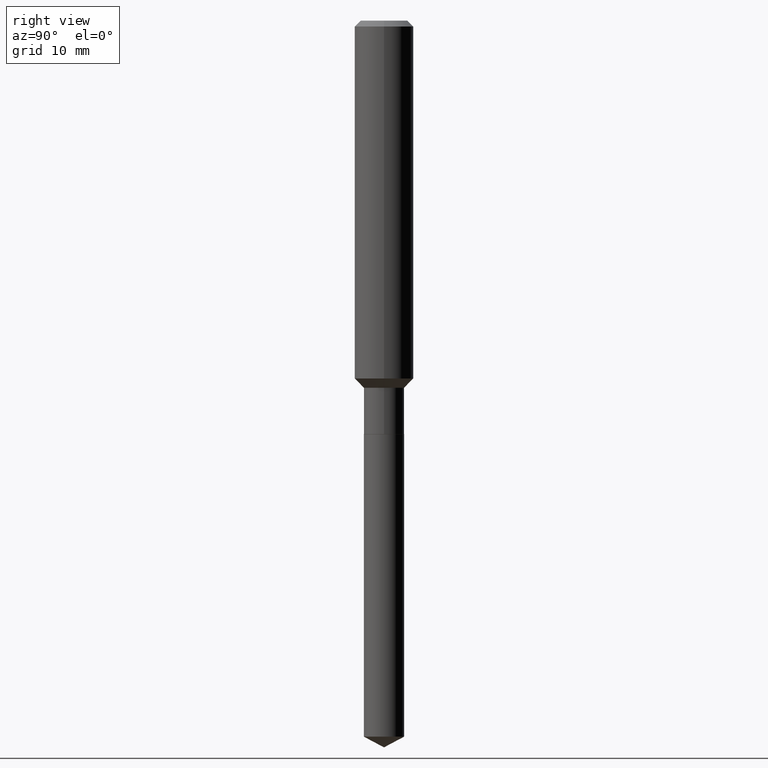
[diagram: clean part render]
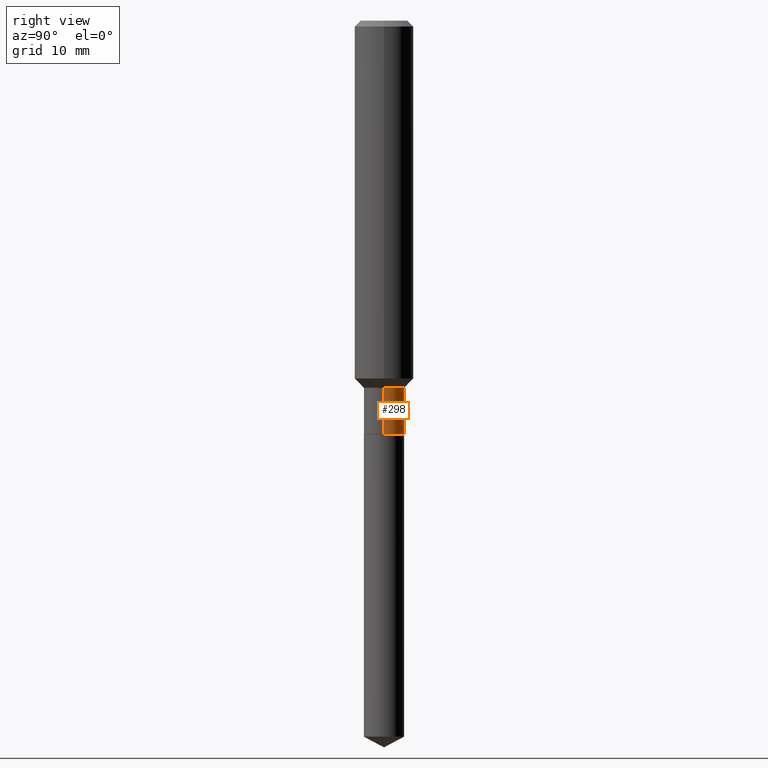
[diagram: same view with one face highlighted and labeled with its STEP entity id]
A machine part, right view. The second image highlights one B-rep face of the part: STEP entity #298.
In plain terms, the highlighted cylindrical surface (edge-blend (fillet) strip) has radius 2.0498 mm, axis along (-0, 0, 1).
Its self-contained STEP definition (entity closure, byte-faithful):
#8 = LINE ( 'NONE', #480, #311 ) ;
#14 = AXIS2_PLACEMENT_3D ( 'NONE', #97, #256, #376 ) ;
#18 = DIRECTION ( 'NONE',  ( -2.445468806185136597E-29, 3.491481338843145583E-15, 1.000000000000000000 ) ) ;
#32 = CARTESIAN_POINT ( 'NONE',  ( 0.08069999999999999396, -6.348909666552373459E-15, -1.657000000000000028 ) ) ;
#45 = VECTOR ( 'NONE', #189, 39.37007874015748143 ) ;
#52 = EDGE_CURVE ( 'NONE', #237, #140, #485, .T. ) ;
#58 = CYLINDRICAL_SURFACE ( 'NONE', #283, 0.08069999999999998008 ) ;
#97 = CARTESIAN_POINT ( 'NONE',  ( 4.052141811848771691E-29, -5.785384578463092385E-15, -1.657000000000000028 ) ) ;
#99 = ORIENTED_EDGE ( 'NONE', *, *, #52, .F. ) ;
#102 = DIRECTION ( 'NONE',  ( -2.445468806185136877E-29, 3.491481338843145188E-15, 1.000000000000000000 ) ) ;
#104 = EDGE_LOOP ( 'NONE', ( #272, #461, #99, #144 ) ) ;
#119 = LINE ( 'NONE', #349, #45 ) ;
#121 = CARTESIAN_POINT ( 'NONE',  ( -0.08069999999999998008, -4.888839992794759829E-15, -1.471900000000000208 ) ) ;
#128 = AXIS2_PLACEMENT_3D ( 'NONE', #179, #473, #300 ) ;
#140 = VERTEX_POINT ( 'NONE', #121 ) ;
#144 = ORIENTED_EDGE ( 'NONE', *, *, #446, .F. ) ;
#160 = VERTEX_POINT ( 'NONE', #32 ) ;
#165 = VERTEX_POINT ( 'NONE', #445 ) ;
#179 = CARTESIAN_POINT ( 'NONE',  ( 3.599485535823903241E-29, -5.139111382643227310E-15, -1.471900000000000208 ) ) ;
#189 = DIRECTION ( 'NONE',  ( -2.445468806185136877E-29, 3.491481338843145188E-15, 1.000000000000000000 ) ) ;
#192 = EDGE_CURVE ( 'NONE', #165, #140, #119, .T. ) ;
#237 = VERTEX_POINT ( 'NONE', #319 ) ;
#252 = FACE_OUTER_BOUND ( 'NONE', #104, .T. ) ;
#256 = DIRECTION ( 'NONE',  ( -2.445468806185136597E-29, 3.491481338843145583E-15, 1.000000000000000000 ) ) ;
#272 = ORIENTED_EDGE ( 'NONE', *, *, #314, .T. ) ;
#283 = AXIS2_PLACEMENT_3D ( 'NONE', #362, #18, #469 ) ;
#298 = ADVANCED_FACE ( 'NONE', ( #252 ), #58, .T. ) ;
#300 = DIRECTION ( 'NONE',  ( 1.000000000000000000, -6.982962677686261977E-15, 0.000000000000000000 ) ) ;
#311 = VECTOR ( 'NONE', #102, 39.37007874015748143 ) ;
#314 = EDGE_CURVE ( 'NONE', #160, #165, #371, .T. ) ;
#319 = CARTESIAN_POINT ( 'NONE',  ( 0.08069999999999998008, -5.702636470732508383E-15, -1.471900000000000208 ) ) ;
#349 = CARTESIAN_POINT ( 'NONE',  ( -0.08069999999999998008, 5.734079877584007085E-16, -3.969580617835708043E-30 ) ) ;
#362 = CARTESIAN_POINT ( 'NONE',  ( 0.000000000000000000, 0.000000000000000000, 0.000000000000000000 ) ) ;
#371 = CIRCLE ( 'NONE', #14, 0.08069999999999999396 ) ;
#376 = DIRECTION ( 'NONE',  ( 1.000000000000000000, -6.982962677686260400E-15, 0.000000000000000000 ) ) ;
#445 = CARTESIAN_POINT ( 'NONE',  ( -0.08069999999999999396, -4.888839992794759829E-15, -1.657000000000000028 ) ) ;
#446 = EDGE_CURVE ( 'NONE', #160, #237, #8, .T. ) ;
#461 = ORIENTED_EDGE ( 'NONE', *, *, #192, .T. ) ;
#469 = DIRECTION ( 'NONE',  ( 1.000000000000000000, -6.982962677686265133E-15, 4.876176775795935232E-29 ) ) ;
#473 = DIRECTION ( 'NONE',  ( -2.445468806185136597E-29, 3.491481338843145583E-15, 1.000000000000000000 ) ) ;
#480 = CARTESIAN_POINT ( 'NONE',  ( 0.08069999999999998008, -5.635250880892814680E-16, 3.935074658067318957E-30 ) ) ;
#485 = CIRCLE ( 'NONE', #128, 0.08069999999999998008 ) ;